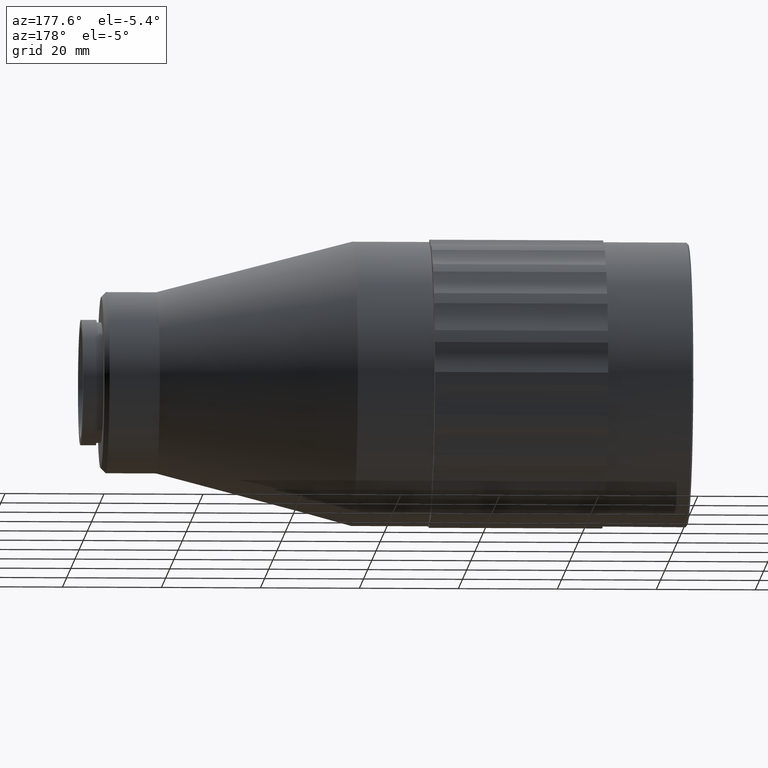
[diagram: clean part render]
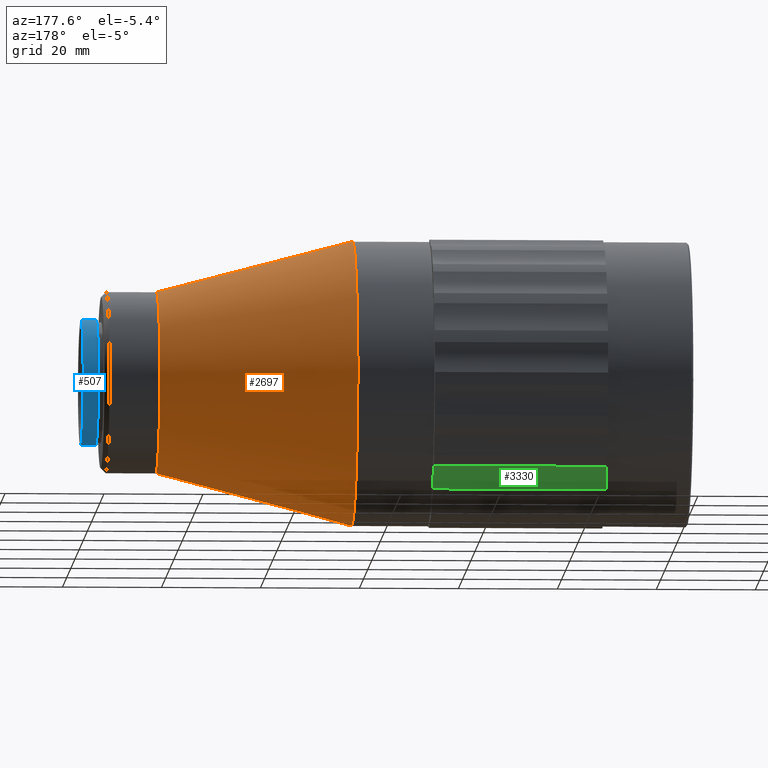
[diagram: same view with three faces highlighted in distinct colors, each labeled with its STEP entity id]
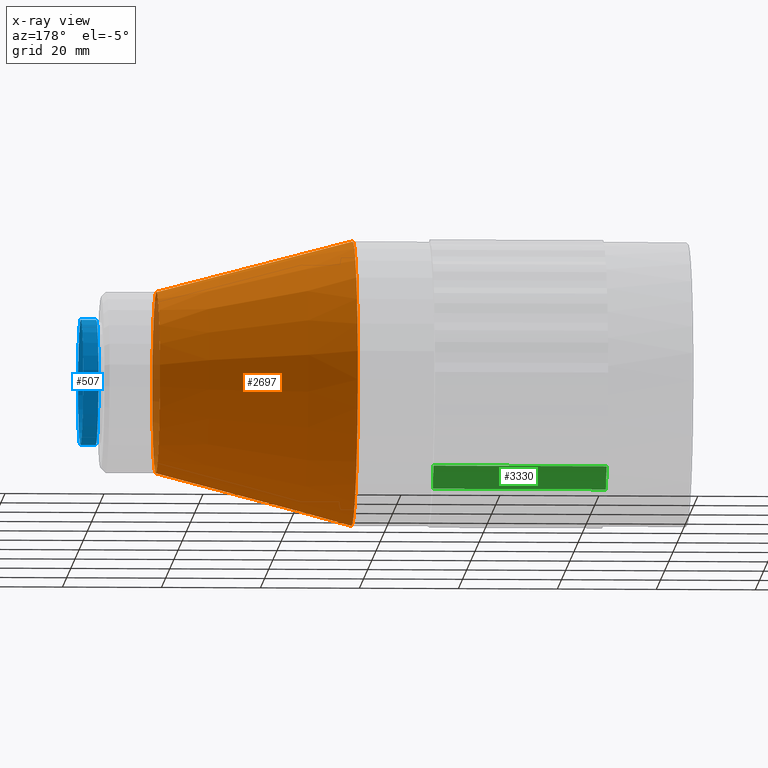
[diagram: x-ray of the same camera — body ghosted, the three highlighted faces saturated]
A machine part, auxiliary view with three faces highlighted in distinct colors.
The next image is the same camera in x-ray (body ghosted, the three faces saturated) — at least one of them is partly hidden behind the body in this view.
Their STEP definitions:

[orange] entity #2697 — the highlighted conical surface has half-angle 14.719 deg.
#45 = CARTESIAN_POINT ( 'NONE',  ( 45.58490411699897749, 7.247355026533550237, 128.9999999999998295 ) ) ;
#87 = CARTESIAN_POINT ( 'NONE',  ( 45.58490411699897749, 7.247355026533550237, 128.9999999999998295 ) ) ;
#179 = EDGE_LOOP ( 'NONE', ( #2233 ) ) ;
#312 = EDGE_CURVE ( 'NONE', #508, #508, #3137, .T. ) ;
#467 = AXIS2_PLACEMENT_3D ( 'NONE', #87, #4146, #1982 ) ;
#508 = VERTEX_POINT ( 'NONE', #4164 ) ;
#933 = CONICAL_SURFACE ( 'NONE', #467, 18.35000000000000853, 0.2568959513499274316 ) ;
#1219 = FACE_OUTER_BOUND ( 'NONE', #3974, .T. ) ;
#1525 = CIRCLE ( 'NONE', #2674, 28.75000000000002132 ) ;
#1555 = DIRECTION ( 'NONE',  ( 0.000000000000000000, 0.01404340982728435709, 0.9999013864578961686 ) ) ;
#1908 = DIRECTION ( 'NONE',  ( -1.000000000000000000, -0.000000000000000000, 0.000000000000000000 ) ) ;
#1982 = DIRECTION ( 'NONE',  ( 0.000000000000000000, 0.01404340982728435709, 0.9999013864578961686 ) ) ;
#2233 = ORIENTED_EDGE ( 'NONE', *, *, #312, .T. ) ;
#2361 = ORIENTED_EDGE ( 'NONE', *, *, #2720, .F. ) ;
#2674 = AXIS2_PLACEMENT_3D ( 'NONE', #4549, #3446, #3925 ) ;
#2678 = FACE_BOUND ( 'NONE', #179, .T. ) ;
#2697 = ADVANCED_FACE ( 'NONE', ( #1219, #2678 ), #933, .T. ) ;
#2720 = EDGE_CURVE ( 'NONE', #3261, #3261, #1525, .T. ) ;
#3137 = CIRCLE ( 'NONE', #4665, 18.35000000000000853 ) ;
#3261 = VERTEX_POINT ( 'NONE', #4368 ) ;
#3446 = DIRECTION ( 'NONE',  ( -1.000000000000000000, -0.000000000000000000, 0.000000000000000000 ) ) ;
#3925 = DIRECTION ( 'NONE',  ( 0.000000000000000000, 0.01404340982728438311, 0.9999013864578960575 ) ) ;
#3974 = EDGE_LOOP ( 'NONE', ( #2361 ) ) ;
#4146 = DIRECTION ( 'NONE',  ( -1.000000000000000000, -0.000000000000000000, 0.000000000000000000 ) ) ;
#4164 = CARTESIAN_POINT ( 'NONE',  ( 45.58490411699897749, 7.505051596864218411, 147.3481904415022541 ) ) ;
#4368 = CARTESIAN_POINT ( 'NONE',  ( 5.996103706382413634, 7.651103059067976275, 157.7471648606643555 ) ) ;
#4549 = CARTESIAN_POINT ( 'NONE',  ( 5.996103706382413634, 7.247355026533550237, 128.9999999999998295 ) ) ;
#4665 = AXIS2_PLACEMENT_3D ( 'NONE', #45, #1908, #1555 ) ;

[blue] entity #507 — the highlighted cylindrical surface (bore or boss wall) has radius 12.7 mm, axis along (-1, -0, 0).
#56 = EDGE_CURVE ( 'NONE', #2312, #2312, #3509, .T. ) ;
#507 = ADVANCED_FACE ( 'NONE', ( #2348, #2708 ), #1276, .T. ) ;
#540 = DIRECTION ( 'NONE',  ( 0.000000000000000000, 0.01404340982728439179, 0.9999013864578962796 ) ) ;
#675 = AXIS2_PLACEMENT_3D ( 'NONE', #4579, #2354, #1229 ) ;
#692 = AXIS2_PLACEMENT_3D ( 'NONE', #2315, #4443, #4466 ) ;
#890 = CARTESIAN_POINT ( 'NONE',  ( -65.54606866673672982, 7.247355026533550237, 128.9999999999998295 ) ) ;
#916 = DIRECTION ( 'NONE',  ( -1.000000000000000000, -0.000000000000000000, 0.000000000000000000 ) ) ;
#1039 = EDGE_LOOP ( 'NONE', ( #3664 ) ) ;
#1229 = DIRECTION ( 'NONE',  ( 0.000000000000000000, 0.01404340982728439179, 0.9999013864578962796 ) ) ;
#1276 = CYLINDRICAL_SURFACE ( 'NONE', #2072, 12.70000000000000462 ) ;
#1530 = EDGE_CURVE ( 'NONE', #2835, #2835, #4720, .T. ) ;
#2072 = AXIS2_PLACEMENT_3D ( 'NONE', #890, #916, #540 ) ;
#2282 = CARTESIAN_POINT ( 'NONE',  ( 57.73857057699898121, 7.069003721727038503, 116.3012523919845478 ) ) ;
#2312 = VERTEX_POINT ( 'NONE', #2282 ) ;
#2315 = CARTESIAN_POINT ( 'NONE',  ( 57.73857057699898121, 7.247355026533550237, 128.9999999999998295 ) ) ;
#2348 = FACE_OUTER_BOUND ( 'NONE', #1039, .T. ) ;
#2354 = DIRECTION ( 'NONE',  ( -1.000000000000000000, -0.000000000000000000, 0.000000000000000000 ) ) ;
#2708 = FACE_OUTER_BOUND ( 'NONE', #2766, .T. ) ;
#2742 = ORIENTED_EDGE ( 'NONE', *, *, #1530, .T. ) ;
#2766 = EDGE_LOOP ( 'NONE', ( #2742 ) ) ;
#2835 = VERTEX_POINT ( 'NONE', #4323 ) ;
#3509 = CIRCLE ( 'NONE', #692, 12.70000000000000462 ) ;
#3664 = ORIENTED_EDGE ( 'NONE', *, *, #56, .T. ) ;
#4323 = CARTESIAN_POINT ( 'NONE',  ( 60.83857057699898263, 7.425706331340061972, 141.6987476080151112 ) ) ;
#4443 = DIRECTION ( 'NONE',  ( 1.000000000000000000, 0.000000000000000000, 0.000000000000000000 ) ) ;
#4466 = DIRECTION ( 'NONE',  ( 0.000000000000000000, -0.01404340982728439179, -0.9999013864578962796 ) ) ;
#4579 = CARTESIAN_POINT ( 'NONE',  ( 60.83857057699898263, 7.247355026533550237, 128.9999999999998295 ) ) ;
#4720 = CIRCLE ( 'NONE', #675, 12.70000000000000462 ) ;

[green] entity #3330 — the highlighted cylindrical surface (partial cylindrical patch) has radius 10.5 mm, axis along (1, 0, -0).
#104 = VECTOR ( 'NONE', #1519, 1000.000000000000000 ) ;
#162 = DIRECTION ( 'NONE',  ( 1.000000000000000000, 1.704585777882314376E-17, -1.131625483736440600E-16 ) ) ;
#233 = DIRECTION ( 'NONE',  ( 1.000000000000000000, 1.704585777882314376E-17, -1.131625483736440600E-16 ) ) ;
#293 = VERTEX_POINT ( 'NONE', #2546 ) ;
#499 = CARTESIAN_POINT ( 'NONE',  ( -44.56429231774998811, 34.35419160990289811, 100.9603956796366333 ) ) ;
#566 = CARTESIAN_POINT ( 'NONE',  ( -44.56429231774998101, 25.16307804354870115, 106.0371497026694527 ) ) ;
#627 = ORIENTED_EDGE ( 'NONE', *, *, #3818, .T. ) ;
#963 = CARTESIAN_POINT ( 'NONE',  ( -9.564292317749981009, 25.16307804354870115, 106.0371497026694527 ) ) ;
#1142 = CARTESIAN_POINT ( 'NONE',  ( -27.06429231774998456, 29.59117664209790632, 110.3179428163848996 ) ) ;
#1149 = LINE ( 'NONE', #3468, #3672 ) ;
#1233 = AXIS2_PLACEMENT_3D ( 'NONE', #4694, #2448, #1748 ) ;
#1350 = CYLINDRICAL_SURFACE ( 'NONE', #1233, 10.50000000000000711 ) ;
#1368 = FACE_OUTER_BOUND ( 'NONE', #3050, .T. ) ;
#1396 = CIRCLE ( 'NONE', #4375, 10.49999999999999645 ) ;
#1508 = EDGE_CURVE ( 'NONE', #293, #1679, #1667, .T. ) ;
#1519 = DIRECTION ( 'NONE',  ( -1.000000000000000000, -1.704585777882314376E-17, 1.131625483736440600E-16 ) ) ;
#1639 = DIRECTION ( 'NONE',  ( 0.000000000000000000, -0.7189642133426508153, -0.6950470918812503562 ) ) ;
#1667 = CIRCLE ( 'NONE', #4339, 10.49999999999999645 ) ;
#1679 = VERTEX_POINT ( 'NONE', #566 ) ;
#1698 = CARTESIAN_POINT ( 'NONE',  ( -9.564292317749988115, 34.35419160990289811, 100.9603956796366333 ) ) ;
#1715 = VERTEX_POINT ( 'NONE', #2726 ) ;
#1748 = DIRECTION ( 'NONE',  ( 0.000000000000000000, 0.3843339697183588144, -0.9231941289460887656 ) ) ;
#1764 = DIRECTION ( 'NONE',  ( 1.000000000000000000, 1.704585777882314376E-17, -1.131625483736440600E-16 ) ) ;
#1824 = VERTEX_POINT ( 'NONE', #963 ) ;
#2448 = DIRECTION ( 'NONE',  ( 1.000000000000000000, 1.704585777882314376E-17, -1.131625483736440600E-16 ) ) ;
#2546 = CARTESIAN_POINT ( 'NONE',  ( -44.56429231774998101, 29.59117664209790632, 110.3179428163848996 ) ) ;
#2726 = CARTESIAN_POINT ( 'NONE',  ( -9.564292317749981009, 29.59117664209790632, 110.3179428163848996 ) ) ;
#3034 = LINE ( 'NONE', #1142, #104 ) ;
#3050 = EDGE_LOOP ( 'NONE', ( #4160, #3826, #627, #4704 ) ) ;
#3131 = EDGE_CURVE ( 'NONE', #1715, #293, #3034, .T. ) ;
#3330 = ADVANCED_FACE ( 'NONE', ( #1368 ), #1350, .F. ) ;
#3468 = CARTESIAN_POINT ( 'NONE',  ( -27.06429231774998456, 25.16307804354869759, 106.0371497026694385 ) ) ;
#3650 = EDGE_CURVE ( 'NONE', #1679, #1824, #1149, .T. ) ;
#3672 = VECTOR ( 'NONE', #162, 1000.000000000000000 ) ;
#3818 = EDGE_CURVE ( 'NONE', #1715, #1824, #1396, .T. ) ;
#3826 = ORIENTED_EDGE ( 'NONE', *, *, #3131, .F. ) ;
#3900 = DIRECTION ( 'NONE',  ( 0.000000000000000000, -0.7189642133426508153, -0.6950470918812503562 ) ) ;
#4160 = ORIENTED_EDGE ( 'NONE', *, *, #1508, .F. ) ;
#4339 = AXIS2_PLACEMENT_3D ( 'NONE', #499, #233, #1639 ) ;
#4375 = AXIS2_PLACEMENT_3D ( 'NONE', #1698, #1764, #3900 ) ;
#4694 = CARTESIAN_POINT ( 'NONE',  ( -44.56429231774998811, 34.35419160990289811, 100.9603956796366333 ) ) ;
#4704 = ORIENTED_EDGE ( 'NONE', *, *, #3650, .F. ) ;